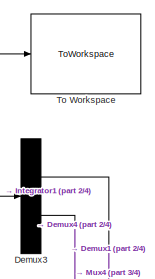
[diagram: root canvas - part 1/4, top right region]
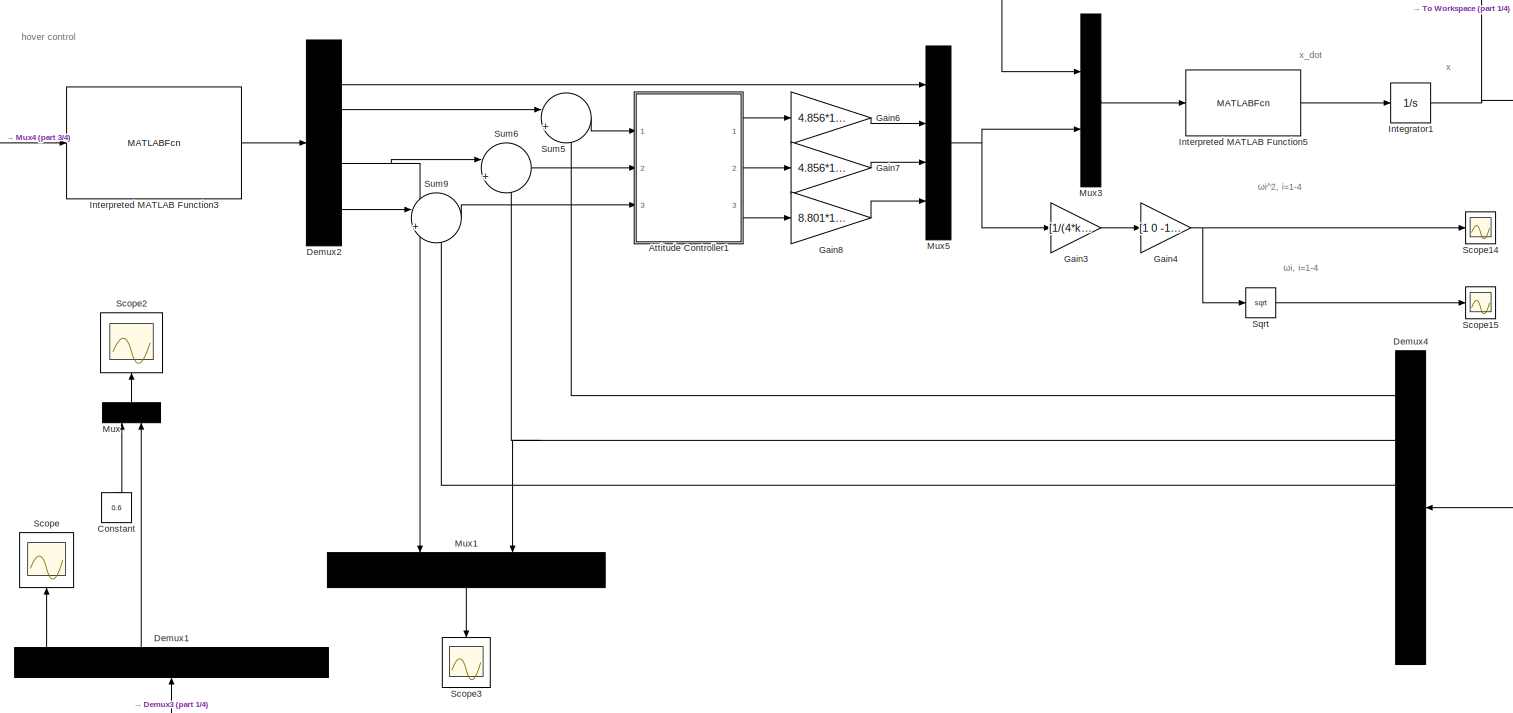
[diagram: root canvas - part 2/4, central region]
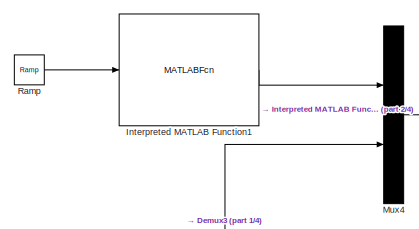
[diagram: root canvas - part 3/4, top left region]
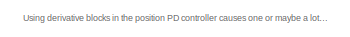
[diagram: root canvas - part 4/4, bottom left region]
MODEL slx_aeee16a91c96
KIND model
CONFIG AbsTol = auto
CONFIG EnableMultiTasking = off
CONFIG FixedStep = auto
CONFIG MaxStep = auto
CONFIG MinStep = auto
CONFIG RelTol = 1e-3
CONFIG SampleTimeConstraint = Unconstrained
CONFIG Solver = VariableStepAuto
CONFIG SolverName = VariableStepAuto
CONFIG StartTime = 0.0
CONFIG StopTime = 10
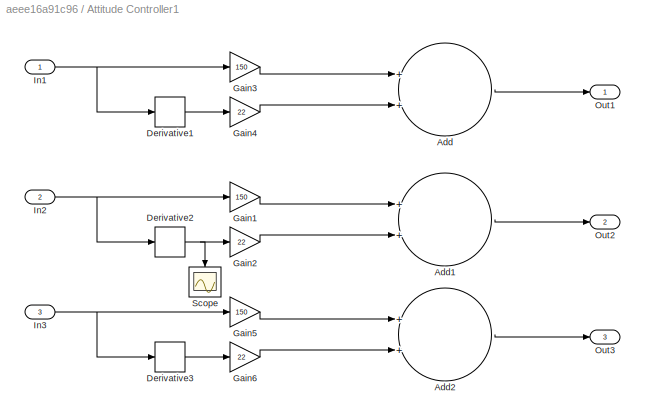
BLOCK [SubSystem] Attitude Controller1
  Ports = [3, 3]
  RequestExecContextInheritance = off
  Variant = off
BLOCK [Sum] Attitude Controller1/Add
  InputSameDT = off
  OutDataTypeStr = Inherit: Inherit via internal rule
  Ports = [2, 1]
  SaturateOnIntegerOverflow = off
BLOCK [Sum] Attitude Controller1/Add1
  InputSameDT = off
  OutDataTypeStr = Inherit: Inherit via internal rule
  Ports = [2, 1]
  SaturateOnIntegerOverflow = off
BLOCK [Sum] Attitude Controller1/Add2
  InputSameDT = off
  OutDataTypeStr = Inherit: Inherit via internal rule
  Ports = [2, 1]
  SaturateOnIntegerOverflow = off
BLOCK [Derivative] Attitude Controller1/Derivative1
BLOCK [Derivative] Attitude Controller1/Derivative2
BLOCK [Derivative] Attitude Controller1/Derivative3
BLOCK [Gain] Attitude Controller1/Gain1
  Gain = 150
  OutDataTypeStr = Inherit: Inherit via internal rule
  ParamDataTypeStr = Inherit: Inherit via internal rule
  SaturateOnIntegerOverflow = off
BLOCK [Gain] Attitude Controller1/Gain2
  Gain = 22
  OutDataTypeStr = Inherit: Inherit via internal rule
  ParamDataTypeStr = Inherit: Inherit via internal rule
  SaturateOnIntegerOverflow = off
BLOCK [Gain] Attitude Controller1/Gain3
  Gain = 150
  OutDataTypeStr = Inherit: Inherit via internal rule
  ParamDataTypeStr = Inherit: Inherit via internal rule
  SaturateOnIntegerOverflow = off
BLOCK [Gain] Attitude Controller1/Gain4
  Gain = 22
  OutDataTypeStr = Inherit: Inherit via internal rule
  ParamDataTypeStr = Inherit: Inherit via internal rule
  SaturateOnIntegerOverflow = off
BLOCK [Gain] Attitude Controller1/Gain5
  Gain = 150
  OutDataTypeStr = Inherit: Inherit via internal rule
  ParamDataTypeStr = Inherit: Inherit via internal rule
  SaturateOnIntegerOverflow = off
BLOCK [Gain] Attitude Controller1/Gain6
  Gain = 22
  OutDataTypeStr = Inherit: Inherit via internal rule
  ParamDataTypeStr = Inherit: Inherit via internal rule
  SaturateOnIntegerOverflow = off
BLOCK [Inport] Attitude Controller1/In1
  IconDisplay = Port number
BLOCK [Inport] Attitude Controller1/In2
  IconDisplay = Port number
  Port = 2
BLOCK [Inport] Attitude Controller1/In3
  IconDisplay = Port number
  Port = 3
BLOCK [Outport] Attitude Controller1/Out1
  IconDisplay = Port number
BLOCK [Outport] Attitude Controller1/Out2
  IconDisplay = Port number
  Port = 2
BLOCK [Outport] Attitude Controller1/Out3
  IconDisplay = Port number
  Port = 3
BLOCK [Scope] Attitude Controller1/Scope
  NumInputPorts = 1
  Ports = [1]
  ScopeSpecificationString = Simulink.scopes.TimeScopeBlockCfg('CurrentConfiguration', extmgr.ConfigurationSet(extmgr.Configuration('Core','General UI',true),extmgr.Configuration('Core','Source UI',true),extmgr.Configuration('Sources','WiredSimulink',true,'DataLoggingVariableName','ScopeData2'),extmgr.Configuration('Visuals','Time Domain',true,'SerializedDisplays',{struct('MinYLimReal','-1.00000','MaxYLimReal','1.00000','YLab...<+1422ch>
BLOCK [Constant] Constant
  Value = 0.6
BLOCK [Demux] Demux1
  DisplayOption = bar
  Outputs = 6
  Ports = [1, 6]
BLOCK [Demux] Demux2
  DisplayOption = bar
  Ports = [1, 4]
BLOCK [Demux] Demux3
  DisplayOption = bar
  Outputs = 2
  Ports = [1, 2]
BLOCK [Demux] Demux4
  DisplayOption = bar
  Outputs = 6
  Ports = [1, 6]
BLOCK [Gain] Gain3
  Gain = [1/(4*k) 0 0 0;0 1/(2*l*k) 0 0;0 0 1/(2*l*k) 0;0 0 0 1/(4*c)]
  Multiplication = Matrix(K*u) (u vector)
  OutDataTypeStr = Inherit: Inherit via internal rule
  ParamDataTypeStr = Inherit: Inherit via internal rule
  SaturateOnIntegerOverflow = off
BLOCK [Gain] Gain4
  Gain = [1 0 -1 1;1 1 0 -1;1 0 1 1;1 -1 0 -1]
  Multiplication = Matrix(K*u) (u vector)
  OutDataTypeStr = Inherit: Inherit via internal rule
  ParamDataTypeStr = Inherit: Inherit via internal rule
  SaturateOnIntegerOverflow = off
BLOCK [Gain] Gain6
  Gain = 4.856*10^-3
  OutDataTypeStr = Inherit: Inherit via internal rule
  ParamDataTypeStr = Inherit: Inherit via internal rule
  SaturateOnIntegerOverflow = off
BLOCK [Gain] Gain7
  Gain = 4.856*10^-3
  OutDataTypeStr = Inherit: Inherit via internal rule
  ParamDataTypeStr = Inherit: Inherit via internal rule
  SaturateOnIntegerOverflow = off
BLOCK [Gain] Gain8
  Gain = 8.801*10^-3
  OutDataTypeStr = Inherit: Inherit via internal rule
  ParamDataTypeStr = Inherit: Inherit via internal rule
  SaturateOnIntegerOverflow = off
BLOCK [Integrator] Integrator1
  InitialCondition = x_phase4(end,:)
  Ports = [1, 1]
BLOCK [MATLABFcn] Interpreted MATLAB Function1
  MATLABFcn = Fcn_references_and_parameters
  OutputDimensions = 15
  Ports = [1, 1]
BLOCK [MATLABFcn] Interpreted MATLAB Function3
  MATLABFcn = Fcn_hover_control
  OutputDimensions = 4
  Ports = [1, 1]
BLOCK [MATLABFcn] Interpreted MATLAB Function5
  MATLABFcn = Fcn_Get_x_dot
  OutputDimensions = 12
  Ports = [1, 1]
BLOCK [Mux] Mux
  DisplayOption = bar
  Inputs = 2
  Ports = [2, 1]
BLOCK [Mux] Mux1
  DisplayOption = bar
  Inputs = 2
  Ports = [2, 1]
BLOCK [Mux] Mux3
  DisplayOption = bar
  Inputs = 2
  Ports = [2, 1]
BLOCK [Mux] Mux4
  DisplayOption = bar
  Inputs = 2
  Ports = [2, 1]
BLOCK [Mux] Mux5
  DisplayOption = bar
  Ports = [4, 1]
BLOCK [Reference] Ramp  REF=simulink/Sources/Ramp
  Ports = [0, 1]
  SourceBlock = simulink/Sources/Ramp
  SourceProductBaseCode = SL
  SourceProductName = Simulink
  SourceType = Ramp
BLOCK [Scope] Scope
  NumInputPorts = 1
  Ports = [1]
  ScopeSpecificationString = Simulink.scopes.TimeScopeBlockCfg('CurrentConfiguration', extmgr.ConfigurationSet(extmgr.Configuration('Core','General UI',true),extmgr.Configuration('Core','Source UI',true),extmgr.Configuration('Sources','WiredSimulink',true,'DataLoggingVariableName','ScopeData2'),extmgr.Configuration('Visuals','Time Domain',true,'SerializedDisplays',{struct('MinYLimReal','-3.50465','MaxYLimReal','-0.3338','YLab...<+1424ch>
BLOCK [Scope] Scope14
  NumInputPorts = 1
  Ports = [1]
  ScopeSpecificationString = Simulink.scopes.TimeScopeBlockCfg('CurrentConfiguration', extmgr.ConfigurationSet(extmgr.Configuration('Core','General UI',true),extmgr.Configuration('Core','Source UI',true),extmgr.Configuration('Sources','WiredSimulink',true,'DataLoggingVariableName','ScopeData1'),extmgr.Configuration('Visuals','Time Domain',true,'SerializedDisplays',{struct('MinYLimReal','2085514.21464','MaxYLimReal','4227730.3...<+1556ch>
BLOCK [Scope] Scope15
  NumInputPorts = 1
  Ports = [1]
  ScopeSpecificationString = Simulink.scopes.TimeScopeBlockCfg('CurrentConfiguration', extmgr.ConfigurationSet(extmgr.Configuration('Core','General UI',true),extmgr.Configuration('Core','Source UI',true),extmgr.Configuration('Sources','WiredSimulink',true,'DataLoggingVariableName','ScopeData2'),extmgr.Configuration('Visuals','Time Domain',true,'SerializedDisplays',{struct('MinYLimReal','1455.6272','MaxYLimReal','2064.23514','...<+1524ch>
BLOCK [Scope] Scope2
  NumInputPorts = 1
  Ports = [1]
  ScopeSpecificationString = Simulink.scopes.TimeScopeBlockCfg('CurrentConfiguration', extmgr.ConfigurationSet(extmgr.Configuration('Core','General UI',true),extmgr.Configuration('Core','Source UI',true),extmgr.Configuration('Sources','WiredSimulink',true,'DataLoggingVariableName','ScopeData1'),extmgr.Configuration('Visuals','Time Domain',true,'SerializedDisplays',{struct('MinYLimReal','-1.42435','MaxYLimReal','0.90143','YLab...<+1412ch>
BLOCK [Scope] Scope3
  NumInputPorts = 1
  Ports = [1]
  ScopeSpecificationString = Simulink.scopes.TimeScopeBlockCfg('CurrentConfiguration', extmgr.ConfigurationSet(extmgr.Configuration('Core','General UI',true),extmgr.Configuration('Core','Source UI',true),extmgr.Configuration('Sources','WiredSimulink',true,'DataLoggingVariableName','ScopeData1'),extmgr.Configuration('Visuals','Time Domain',true,'SerializedDisplays',{struct('MinYLimReal','-0.03544','MaxYLimReal','0.24111','YLab...<+1434ch>
BLOCK [Sqrt] Sqrt
BLOCK [Sum] Sum5
  IconShape = round
  InputSameDT = off
  Inputs = |+-
  OutDataTypeStr = Inherit: Inherit via internal rule
  Ports = [2, 1]
  SaturateOnIntegerOverflow = off
BLOCK [Sum] Sum6
  IconShape = round
  InputSameDT = off
  Inputs = |+-
  OutDataTypeStr = Inherit: Inherit via internal rule
  Ports = [2, 1]
  SaturateOnIntegerOverflow = off
BLOCK [Sum] Sum9
  IconShape = round
  InputSameDT = off
  Inputs = |+-
  OutDataTypeStr = Inherit: Inherit via internal rule
  Ports = [2, 1]
  SaturateOnIntegerOverflow = off
BLOCK [ToWorkspace] To Workspace
  FixptAsFi = on
  MaxDataPoints = inf
  Ports = [1]
  SampleTime = 0.01
  Save2DSignal = 3-D array (concatenate along third dimension)
  VariableName = x_phase5
ANNOTATION (root): x
ANNOTATION (root): x_dot
ANNOTATION (root): Using derivative blocks in the position PD controller causes one or maybe a lot of problems, so instead, I use a matlab function
ANNOTATION (root): ωi, i=1-4
ANNOTATION (root): ωi^2, i=1-4
ANNOTATION (root): hover control
LINE Attitude Controller1/Add1:1 -> Attitude Controller1/Out2:1
LINE Attitude Controller1/Add2:1 -> Attitude Controller1/Out3:1
LINE Attitude Controller1/Add:1 -> Attitude Controller1/Out1:1
LINE Attitude Controller1/Derivative1:1 -> Attitude Controller1/Gain4:1
NET Attitude Controller1/Derivative2:1 -> Attitude Controller1/Gain2:1, Attitude Controller1/Scope:1
LINE Attitude Controller1/Derivative3:1 -> Attitude Controller1/Gain6:1
LINE Attitude Controller1/Gain1:1 -> Attitude Controller1/Add1:1
LINE Attitude Controller1/Gain2:1 -> Attitude Controller1/Add1:2
LINE Attitude Controller1/Gain3:1 -> Attitude Controller1/Add:1
LINE Attitude Controller1/Gain4:1 -> Attitude Controller1/Add:2
LINE Attitude Controller1/Gain5:1 -> Attitude Controller1/Add2:1
LINE Attitude Controller1/Gain6:1 -> Attitude Controller1/Add2:2
NET Attitude Controller1/In1:1 -> Attitude Controller1/Derivative1:1, Attitude Controller1/Gain3:1
NET Attitude Controller1/In2:1 -> Attitude Controller1/Derivative2:1, Attitude Controller1/Gain1:1
NET Attitude Controller1/In3:1 -> Attitude Controller1/Derivative3:1, Attitude Controller1/Gain5:1
LINE Attitude Controller1:1 -> Gain6:1
LINE Attitude Controller1:2 -> Gain7:1
LINE Attitude Controller1:3 -> Gain8:1
LINE Constant:1 -> Mux:1
LINE Demux1:1 -> Scope:1
LINE Demux1:3 -> Mux:2
LINE Demux2:1 -> Mux5:1
LINE Demux2:2 -> Sum5:1
NET Demux2:3 -> Mux1:1, Sum6:1
LINE Demux2:4 -> Sum9:1
NET Demux3:1 -> Demux1:1, Mux4:2
LINE Demux3:2 -> Demux4:1
LINE Demux4:1 -> Sum5:2
NET Demux4:2 -> Mux1:2, Sum6:2
LINE Demux4:3 -> Sum9:2
LINE Gain3:1 -> Gain4:1
NET Gain4:1 -> Scope14:1, Sqrt:1
LINE Gain6:1 -> Mux5:2
LINE Gain7:1 -> Mux5:3
LINE Gain8:1 -> Mux5:4
NET Integrator1:1 -> Demux3:1, Mux3:1, To Workspace:1
LINE Interpreted MATLAB Function1:1 -> Mux4:1
LINE Interpreted MATLAB Function3:1 -> Demux2:1
LINE Interpreted MATLAB Function5:1 -> Integrator1:1
LINE Mux1:1 -> Scope3:1
LINE Mux3:1 -> Interpreted MATLAB Function5:1
LINE Mux4:1 -> Interpreted MATLAB Function3:1
NET Mux5:1 -> Gain3:1, Mux3:2
LINE Mux:1 -> Scope2:1
LINE Ramp:1 -> Interpreted MATLAB Function1:1
LINE Sqrt:1 -> Scope15:1
LINE Sum5:1 -> Attitude Controller1:1
LINE Sum6:1 -> Attitude Controller1:2
LINE Sum9:1 -> Attitude Controller1:3
note: NET lines group one-source signal fan-out (src -> all destinations, sorted); 1:1 wires keep LINE
